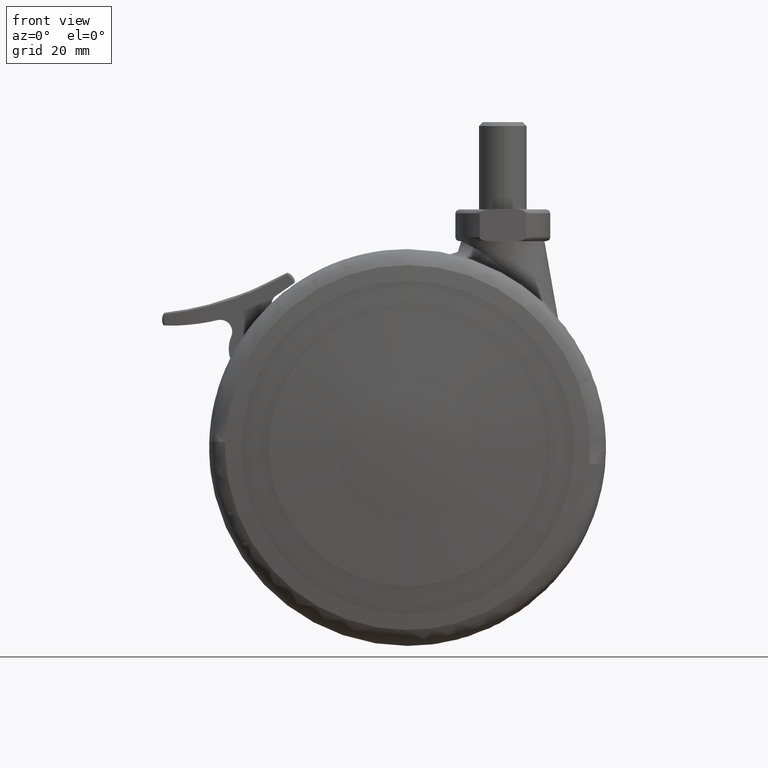
[diagram: clean part render]
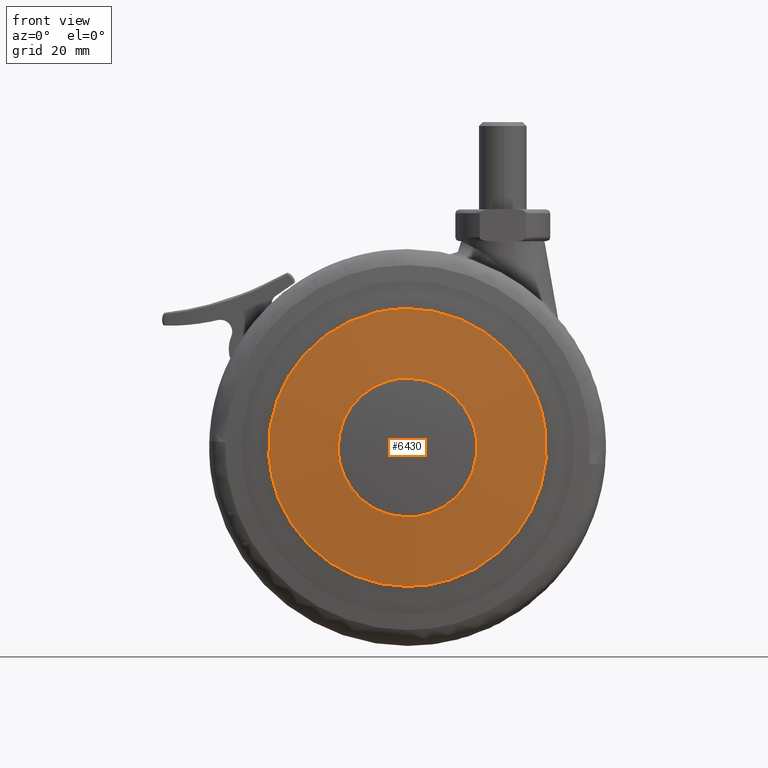
[diagram: same view with one face highlighted and labeled with its STEP entity id]
A machine part, front view. The second image highlights one B-rep face of the part: STEP entity #6430.
In plain terms, the highlighted face is a freeform B-spline surface patch.
Its self-contained STEP definition (entity closure, byte-faithful):
#4934=CARTESIAN_POINT('',(17.377664456268601,-30.499999820000049,2.065598838515968));
#4935=VERTEX_POINT('',#4934);
#4936=CARTESIAN_POINT('',(0.0,-30.499999820000049,-17.499998833836450));
#4937=VERTEX_POINT('',#4936);
#4938=CARTESIAN_POINT('',(17.377664456268594,-30.499999820000049,2.065598838515969));
#4939=CARTESIAN_POINT('',(17.499997765615014,-30.499999820000049,1.036421897906469));
#4940=CARTESIAN_POINT('',(17.499997798101671,-30.499999820000049,-0.000000123112778));
#4941=CARTESIAN_POINT('',(17.499998346639302,-30.499999820000046,-17.499998891747214));
#4942=CARTESIAN_POINT('',(0.0,-30.499999820000049,-17.499998833836450));
#4950=(BOUNDED_CURVE()B_SPLINE_CURVE(2,(#4938,#4939,#4940,#4941,#4942),.UNSPECIFIED.,.F.,.U.)B_SPLINE_CURVE_WITH_KNOTS((3,2,3),(0.229562473514925,0.250000000000000,0.500000000000000),.UNSPECIFIED.)CURVE()GEOMETRIC_REPRESENTATION_ITEM()RATIONAL_B_SPLINE_CURVE((0.956026754186476,0.976055948332805,1.0,0.707106781186547,1.0))REPRESENTATION_ITEM(''));
#4951=EDGE_CURVE('',#4935,#4937,#4950,.T.);
#4992=CARTESIAN_POINT('',(-17.467357814812079,-30.499999819976811,-1.068331168380305));
#4993=VERTEX_POINT('',#4992);
#4999=CARTESIAN_POINT('',(0.0,-30.499999820000049,-17.499998833836450));
#5000=CARTESIAN_POINT('',(-16.462371645839585,-30.499999819988442,-17.499998800113580));
#5001=CARTESIAN_POINT('',(-17.467357814812075,-30.499999819976814,-1.068331168380304));
#5009=(BOUNDED_CURVE()B_SPLINE_CURVE(2,(#4999,#5000,#5001),.UNSPECIFIED.,.F.,.U.)B_SPLINE_CURVE_WITH_KNOTS((3,3),(0.500000000000000,0.739333141382352),.UNSPECIFIED.)CURVE()GEOMETRIC_REPRESENTATION_ITEM()RATIONAL_B_SPLINE_CURVE((1.0,0.719603783407151,0.976072425605445))REPRESENTATION_ITEM(''));
#5010=EDGE_CURVE('',#4937,#4993,#5009,.T.);
#5033=CARTESIAN_POINT('',(0.0,-30.499999820000049,17.499998833836450));
#5034=VERTEX_POINT('',#5033);
#5035=CARTESIAN_POINT('',(0.0,-30.499999820000049,17.499998833836450));
#5036=CARTESIAN_POINT('',(15.543052619787943,-30.499999820000046,17.499998768634430));
#5037=CARTESIAN_POINT('',(17.377664456268594,-30.499999820000049,2.065598838515969));
#5045=(BOUNDED_CURVE()B_SPLINE_CURVE(2,(#5035,#5036,#5037),.UNSPECIFIED.,.F.,.U.)B_SPLINE_CURVE_WITH_KNOTS((3,3),(0.0,0.229562473514925),.UNSPECIFIED.)CURVE()GEOMETRIC_REPRESENTATION_ITEM()RATIONAL_B_SPLINE_CURVE((1.0,0.731050832853743,0.956026754186476))REPRESENTATION_ITEM(''));
#5046=EDGE_CURVE('',#5034,#4935,#5045,.T.);
#5048=CARTESIAN_POINT('',(-17.467357814812075,-30.499999819976814,-1.068331168380304));
#5049=CARTESIAN_POINT('',(-17.499997746936184,-30.499999819977155,-0.534664162774841));
#5050=CARTESIAN_POINT('',(-17.499997763781881,-30.499999819977511,0.000000065446225));
#5051=CARTESIAN_POINT('',(-17.499998315155445,-30.499999819989128,17.499998865559796));
#5052=CARTESIAN_POINT('',(0.0,-30.499999820000049,17.499998833836450));
#5060=(BOUNDED_CURVE()B_SPLINE_CURVE(2,(#5048,#5049,#5050,#5051,#5052),.UNSPECIFIED.,.F.,.U.)B_SPLINE_CURVE_WITH_KNOTS((3,2,3),(0.739333141382352,0.750000000000000,1.0),.UNSPECIFIED.)CURVE()GEOMETRIC_REPRESENTATION_ITEM()RATIONAL_B_SPLINE_CURVE((0.976072425605445,0.987502997779396,1.0,0.707106781186547,1.0))REPRESENTATION_ITEM(''));
#5061=EDGE_CURVE('',#4993,#5034,#5060,.T.);
#5120=CARTESIAN_POINT('',(34.755336304148187,-29.429466281998341,4.131173971761895));
#5121=VERTEX_POINT('',#5120);
#5122=CARTESIAN_POINT('',(0.0,-29.429466281994149,-35.0));
#5123=VERTEX_POINT('',#5122);
#5124=CARTESIAN_POINT('',(34.755336304148194,-29.429466281998337,4.131173971761895));
#5125=CARTESIAN_POINT('',(34.999999999999993,-29.429466281994156,2.072831939068230));
#5126=CARTESIAN_POINT('',(35.0,-29.429466281994149,0.0));
#5127=CARTESIAN_POINT('',(34.999999999999993,-29.429466281994156,-34.999999999999993));
#5128=CARTESIAN_POINT('',(0.0,-29.429466281994149,-35.0));
#5136=(BOUNDED_CURVE()B_SPLINE_CURVE(2,(#5124,#5125,#5126,#5127,#5128),.UNSPECIFIED.,.F.,.U.)B_SPLINE_CURVE_WITH_KNOTS((3,2,3),(0.229562591392399,0.250000000000000,0.500000000000000),.UNSPECIFIED.)CURVE()GEOMETRIC_REPRESENTATION_ITEM()RATIONAL_B_SPLINE_CURVE((0.956026985231279,0.976056086434856,1.0,0.707106781186548,1.0))REPRESENTATION_ITEM(''));
#5137=EDGE_CURVE('',#5121,#5123,#5136,.T.);
#5139=CARTESIAN_POINT('',(-34.934720181211787,-29.429466281988251,-2.136662317515716));
#5140=VERTEX_POINT('',#5139);
#5141=CARTESIAN_POINT('',(0.0,-29.429466281994149,-35.0));
#5142=CARTESIAN_POINT('',(-32.924746868442831,-29.429466281994159,-34.999999999999993));
#5143=CARTESIAN_POINT('',(-34.934720181211787,-29.429466281988248,-2.136662317515716));
#5151=(BOUNDED_CURVE()B_SPLINE_CURVE(2,(#5141,#5142,#5143),.UNSPECIFIED.,.F.,.U.)B_SPLINE_CURVE_WITH_KNOTS((3,3),(0.500000000000000,0.739333142846890),.UNSPECIFIED.)CURVE()GEOMETRIC_REPRESENTATION_ITEM()RATIONAL_B_SPLINE_CURVE((1.0,0.719603781691338,0.976072428744235))REPRESENTATION_ITEM(''));
#5152=EDGE_CURVE('',#5123,#5140,#5151,.T.);
#5219=CARTESIAN_POINT('',(0.0,-29.429466281994149,35.0));
#5220=VERTEX_POINT('',#5219);
#5221=CARTESIAN_POINT('',(0.0,-29.429466281994149,35.0));
#5222=CARTESIAN_POINT('',(31.086130242943007,-29.429466281994166,35.0));
#5223=CARTESIAN_POINT('',(34.755336304148187,-29.429466281998344,4.131173971761895));
#5231=(BOUNDED_CURVE()B_SPLINE_CURVE(2,(#5221,#5222,#5223),.UNSPECIFIED.,.F.,.U.)B_SPLINE_CURVE_WITH_KNOTS((3,3),(0.0,0.229562591392399),.UNSPECIFIED.)CURVE()GEOMETRIC_REPRESENTATION_ITEM()RATIONAL_B_SPLINE_CURVE((1.0,0.731050694751692,0.956026985231279))REPRESENTATION_ITEM(''));
#5232=EDGE_CURVE('',#5220,#5121,#5231,.T.);
#5266=CARTESIAN_POINT('',(-34.934720181211787,-29.429466281988248,-2.136662317515716));
#5267=CARTESIAN_POINT('',(-35.000000000000007,-29.429466281994156,-1.069328381085897));
#5268=CARTESIAN_POINT('',(-35.0,-29.429466281994149,0.0));
#5269=CARTESIAN_POINT('',(-34.999999999999993,-29.429466281994156,34.999999999999993));
#5270=CARTESIAN_POINT('',(0.0,-29.429466281994149,35.0));
#5278=(BOUNDED_CURVE()B_SPLINE_CURVE(2,(#5266,#5267,#5268,#5269,#5270),.UNSPECIFIED.,.F.,.U.)B_SPLINE_CURVE_WITH_KNOTS((3,2,3),(0.739333142846890,0.750000000000000,1.0),.UNSPECIFIED.)CURVE()GEOMETRIC_REPRESENTATION_ITEM()RATIONAL_B_SPLINE_CURVE((0.976072428744235,0.987502999495210,1.0,0.707106781186548,1.0))REPRESENTATION_ITEM(''));
#5279=EDGE_CURVE('',#5140,#5220,#5278,.T.);
#6394=CARTESIAN_POINT('',(-38.405199736858599,-27.412246265986134,-38.406046254825903));
#6395=CARTESIAN_POINT('',(-19.241126082348856,-29.130756243555190,-38.483100381035676));
#6396=CARTESIAN_POINT('',(19.241238964752032,-29.130756243555190,-38.483100381035676));
#6397=CARTESIAN_POINT('',(38.405424147331011,-27.412226142249498,-38.406045352522796));
#6398=CARTESIAN_POINT('',(-38.482255568291713,-29.130832154340368,-19.241551892352344));
#6399=CARTESIAN_POINT('',(-19.279808906130938,-30.856251999999809,-19.280233866937198));
#6400=CARTESIAN_POINT('',(19.279922015475620,-30.856251999999809,-19.280233866937198));
#6401=CARTESIAN_POINT('',(38.482480427205218,-29.130811949770560,-19.241551439388601));
#6402=CARTESIAN_POINT('',(-38.482255568291713,-29.130832154340368,19.241555419606819));
#6403=CARTESIAN_POINT('',(-19.279808906130938,-30.856251999999809,19.280237401282641));
#6404=CARTESIAN_POINT('',(19.279922015475620,-30.856251999999809,19.280237401282641));
#6405=CARTESIAN_POINT('',(38.482480427205218,-29.130811949770550,19.241554966642994));
#6406=CARTESIAN_POINT('',(-38.405199708664298,-27.412245637164521,38.406053267014130));
#6407=CARTESIAN_POINT('',(-19.241126068195065,-29.130755612207800,38.483107407235750));
#6408=CARTESIAN_POINT('',(19.241238950598156,-29.130755612207800,38.483107407235750));
#6409=CARTESIAN_POINT('',(38.405424119136512,-27.412225513427881,38.406052364710817));
#6417=(BOUNDED_SURFACE()B_SPLINE_SURFACE(2,2,((#6394,#6398,#6402,#6406),(#6395,#6399,#6403,#6407),(#6396,#6400,#6404,#6408),(#6397,#6401,#6405,#6409)),.UNSPECIFIED.,.F.,.F.,.U.)B_SPLINE_SURFACE_WITH_KNOTS((3,1,3),(3,1,3),(153.107659277343710,190.694805514751490,228.282172265625010),(153.106830790710490,190.694805514751610,228.282787129211410),.UNSPECIFIED.)GEOMETRIC_REPRESENTATION_ITEM()RATIONAL_B_SPLINE_SURFACE(((1.004020759596651,1.002010335486517,1.002010335486517,1.004020760333730),(1.002010424110134,1.0,1.0,1.002010424847214),(1.002010424110134,1.0,1.0,1.002010424847214),(1.004020783184892,1.002010359074758,1.002010359074758,1.004020783921972)))REPRESENTATION_ITEM('')SURFACE());
#6418=ORIENTED_EDGE('',*,*,#5279,.F.);
#6419=ORIENTED_EDGE('',*,*,#5152,.F.);
#6420=ORIENTED_EDGE('',*,*,#5137,.F.);
#6421=ORIENTED_EDGE('',*,*,#5232,.F.);
#6422=EDGE_LOOP('',(#6418,#6419,#6420,#6421));
#6423=FACE_OUTER_BOUND('',#6422,.T.);
#6424=ORIENTED_EDGE('',*,*,#5010,.T.);
#6425=ORIENTED_EDGE('',*,*,#5061,.T.);
#6426=ORIENTED_EDGE('',*,*,#5046,.T.);
#6427=ORIENTED_EDGE('',*,*,#4951,.T.);
#6428=EDGE_LOOP('',(#6424,#6425,#6426,#6427));
#6429=FACE_BOUND('',#6428,.T.);
#6430=ADVANCED_FACE('',(#6423,#6429),#6417,.T.);